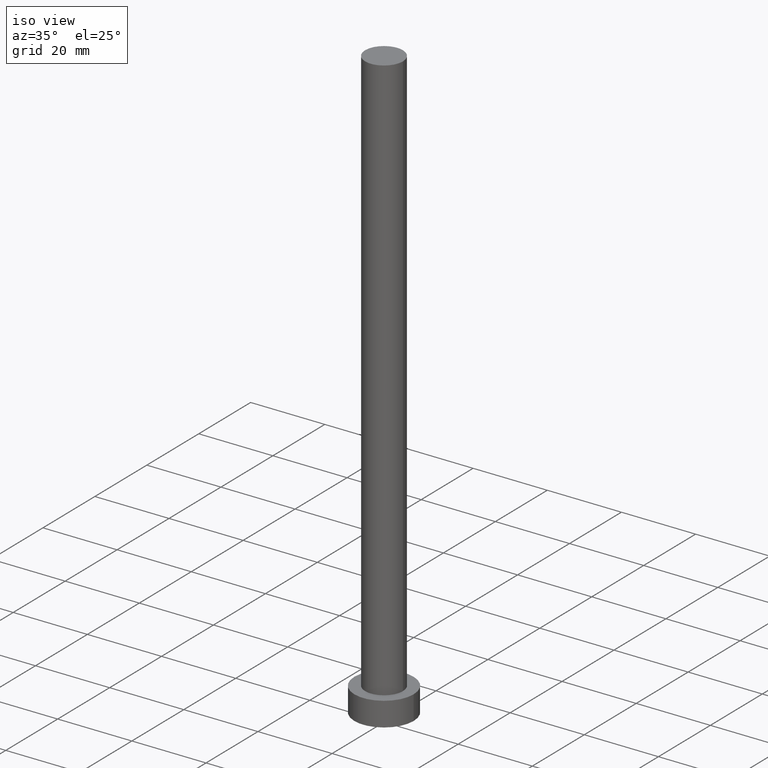
[diagram: clean part render]
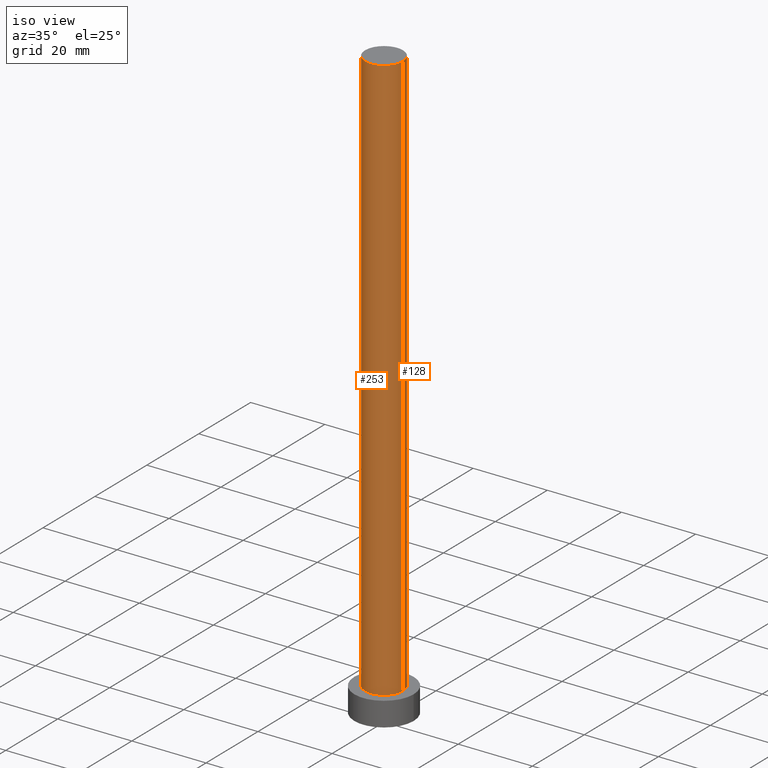
[diagram: same view with one multi-face feature highlighted, each face labeled with its STEP entity id]
A machine part, iso view. The highlighted faces form ONE feature: a constant-radius fillet chain: 2 tangent blend faces with common blend radius 5.1 mm. The faces share edges in the B-rep.
Their STEP definitions:
[1] entity #253 (Cylinder):
#1 = EDGE_LOOP ( 'NONE', ( #105, #221, #110, #184 ) ) ;
#6 = CARTESIAN_POINT ( 'NONE',  ( 5.100000000000001421, 6.245698675651502811E-16, 160.0000000000000000 ) ) ;
#8 = LINE ( 'NONE', #6, #81 ) ;
#31 = FACE_OUTER_BOUND ( 'NONE', #1, .T. ) ;
#46 = CARTESIAN_POINT ( 'NONE',  ( 0.000000000000000000, 0.000000000000000000, 6.500000000000000000 ) ) ;
#48 = DIRECTION ( 'NONE',  ( 1.000000000000000000, 0.000000000000000000, 0.000000000000000000 ) ) ;
#54 = EDGE_CURVE ( 'NONE', #87, #149, #8, .T. ) ;
#55 = AXIS2_PLACEMENT_3D ( 'NONE', #124, #123, #56 ) ;
#56 = DIRECTION ( 'NONE',  ( -1.000000000000000000, 0.000000000000000000, 0.000000000000000000 ) ) ;
#59 = VERTEX_POINT ( 'NONE', #196 ) ;
#81 = VECTOR ( 'NONE', #132, 1000.000000000000000 ) ;
#87 = VERTEX_POINT ( 'NONE', #156 ) ;
#97 = DIRECTION ( 'NONE',  ( 0.000000000000000000, 0.000000000000000000, 1.000000000000000000 ) ) ;
#99 = DIRECTION ( 'NONE',  ( -0.000000000000000000, -0.000000000000000000, -1.000000000000000000 ) ) ;
#101 = VECTOR ( 'NONE', #99, 1000.000000000000000 ) ;
#105 = ORIENTED_EDGE ( 'NONE', *, *, #54, .F. ) ;
#106 = CIRCLE ( 'NONE', #202, 5.100000000000001421 ) ;
#110 = ORIENTED_EDGE ( 'NONE', *, *, #215, .T. ) ;
#115 = DIRECTION ( 'NONE',  ( 0.000000000000000000, 0.000000000000000000, 1.000000000000000000 ) ) ;
#117 = CARTESIAN_POINT ( 'NONE',  ( -5.100000000000001421, 0.000000000000000000, 160.0000000000000000 ) ) ;
#121 = EDGE_CURVE ( 'NONE', #166, #87, #168, .T. ) ;
#123 = DIRECTION ( 'NONE',  ( -0.000000000000000000, -0.000000000000000000, -1.000000000000000000 ) ) ;
#124 = CARTESIAN_POINT ( 'NONE',  ( 0.000000000000000000, 0.000000000000000000, 160.0000000000000000 ) ) ;
#132 = DIRECTION ( 'NONE',  ( -0.000000000000000000, -0.000000000000000000, -1.000000000000000000 ) ) ;
#149 = VERTEX_POINT ( 'NONE', #169 ) ;
#151 = AXIS2_PLACEMENT_3D ( 'NONE', #232, #97, #48 ) ;
#154 = EDGE_CURVE ( 'NONE', #59, #149, #106, .T. ) ;
#156 = CARTESIAN_POINT ( 'NONE',  ( 5.100000000000001421, 6.245698675651502811E-16, 160.0000000000000000 ) ) ;
#163 = CYLINDRICAL_SURFACE ( 'NONE', #55, 5.100000000000001421 ) ;
#166 = VERTEX_POINT ( 'NONE', #117 ) ;
#168 = CIRCLE ( 'NONE', #151, 5.100000000000001421 ) ;
#169 = CARTESIAN_POINT ( 'NONE',  ( 5.100000000000001421, 6.245698675651502811E-16, 6.500000000000000000 ) ) ;
#184 = ORIENTED_EDGE ( 'NONE', *, *, #154, .T. ) ;
#196 = CARTESIAN_POINT ( 'NONE',  ( -5.100000000000001421, 0.000000000000000000, 6.500000000000000000 ) ) ;
#198 = LINE ( 'NONE', #216, #101 ) ;
#202 = AXIS2_PLACEMENT_3D ( 'NONE', #46, #115, #247 ) ;
#215 = EDGE_CURVE ( 'NONE', #166, #59, #198, .T. ) ;
#216 = CARTESIAN_POINT ( 'NONE',  ( -5.100000000000001421, 0.000000000000000000, 160.0000000000000000 ) ) ;
#221 = ORIENTED_EDGE ( 'NONE', *, *, #121, .F. ) ;
#232 = CARTESIAN_POINT ( 'NONE',  ( 0.000000000000000000, 0.000000000000000000, 160.0000000000000000 ) ) ;
#247 = DIRECTION ( 'NONE',  ( 1.000000000000000000, 0.000000000000000000, 0.000000000000000000 ) ) ;
#253 = ADVANCED_FACE ( 'NONE', ( #31 ), #163, .T. ) ;
[2] entity #128 (Cylinder):
#6 = CARTESIAN_POINT ( 'NONE',  ( 5.100000000000001421, 6.245698675651502811E-16, 160.0000000000000000 ) ) ;
#8 = LINE ( 'NONE', #6, #81 ) ;
#12 = CARTESIAN_POINT ( 'NONE',  ( 0.000000000000000000, 0.000000000000000000, 160.0000000000000000 ) ) ;
#14 = DIRECTION ( 'NONE',  ( 1.000000000000000000, 0.000000000000000000, 0.000000000000000000 ) ) ;
#21 = CARTESIAN_POINT ( 'NONE',  ( 0.000000000000000000, 0.000000000000000000, 6.500000000000000000 ) ) ;
#54 = EDGE_CURVE ( 'NONE', #87, #149, #8, .T. ) ;
#59 = VERTEX_POINT ( 'NONE', #196 ) ;
#60 = ORIENTED_EDGE ( 'NONE', *, *, #83, .T. ) ;
#68 = DIRECTION ( 'NONE',  ( 0.000000000000000000, 0.000000000000000000, 1.000000000000000000 ) ) ;
#74 = AXIS2_PLACEMENT_3D ( 'NONE', #78, #234, #14 ) ;
#77 = DIRECTION ( 'NONE',  ( -0.000000000000000000, -0.000000000000000000, -1.000000000000000000 ) ) ;
#78 = CARTESIAN_POINT ( 'NONE',  ( 0.000000000000000000, 0.000000000000000000, 160.0000000000000000 ) ) ;
#81 = VECTOR ( 'NONE', #132, 1000.000000000000000 ) ;
#83 = EDGE_CURVE ( 'NONE', #149, #59, #119, .T. ) ;
#87 = VERTEX_POINT ( 'NONE', #156 ) ;
#93 = DIRECTION ( 'NONE',  ( -1.000000000000000000, 0.000000000000000000, 0.000000000000000000 ) ) ;
#99 = DIRECTION ( 'NONE',  ( -0.000000000000000000, -0.000000000000000000, -1.000000000000000000 ) ) ;
#101 = VECTOR ( 'NONE', #99, 1000.000000000000000 ) ;
#117 = CARTESIAN_POINT ( 'NONE',  ( -5.100000000000001421, 0.000000000000000000, 160.0000000000000000 ) ) ;
#119 = CIRCLE ( 'NONE', #254, 5.100000000000001421 ) ;
#128 = ADVANCED_FACE ( 'NONE', ( #136 ), #138, .T. ) ;
#132 = DIRECTION ( 'NONE',  ( -0.000000000000000000, -0.000000000000000000, -1.000000000000000000 ) ) ;
#134 = EDGE_LOOP ( 'NONE', ( #167, #183, #60, #231 ) ) ;
#136 = FACE_OUTER_BOUND ( 'NONE', #134, .T. ) ;
#138 = CYLINDRICAL_SURFACE ( 'NONE', #248, 5.100000000000001421 ) ;
#149 = VERTEX_POINT ( 'NONE', #169 ) ;
#156 = CARTESIAN_POINT ( 'NONE',  ( 5.100000000000001421, 6.245698675651502811E-16, 160.0000000000000000 ) ) ;
#166 = VERTEX_POINT ( 'NONE', #117 ) ;
#167 = ORIENTED_EDGE ( 'NONE', *, *, #235, .F. ) ;
#169 = CARTESIAN_POINT ( 'NONE',  ( 5.100000000000001421, 6.245698675651502811E-16, 6.500000000000000000 ) ) ;
#172 = DIRECTION ( 'NONE',  ( 1.000000000000000000, 0.000000000000000000, 0.000000000000000000 ) ) ;
#183 = ORIENTED_EDGE ( 'NONE', *, *, #54, .T. ) ;
#185 = CIRCLE ( 'NONE', #74, 5.100000000000001421 ) ;
#196 = CARTESIAN_POINT ( 'NONE',  ( -5.100000000000001421, 0.000000000000000000, 6.500000000000000000 ) ) ;
#198 = LINE ( 'NONE', #216, #101 ) ;
#215 = EDGE_CURVE ( 'NONE', #166, #59, #198, .T. ) ;
#216 = CARTESIAN_POINT ( 'NONE',  ( -5.100000000000001421, 0.000000000000000000, 160.0000000000000000 ) ) ;
#231 = ORIENTED_EDGE ( 'NONE', *, *, #215, .F. ) ;
#234 = DIRECTION ( 'NONE',  ( 0.000000000000000000, 0.000000000000000000, 1.000000000000000000 ) ) ;
#235 = EDGE_CURVE ( 'NONE', #87, #166, #185, .T. ) ;
#248 = AXIS2_PLACEMENT_3D ( 'NONE', #12, #77, #93 ) ;
#254 = AXIS2_PLACEMENT_3D ( 'NONE', #21, #68, #172 ) ;